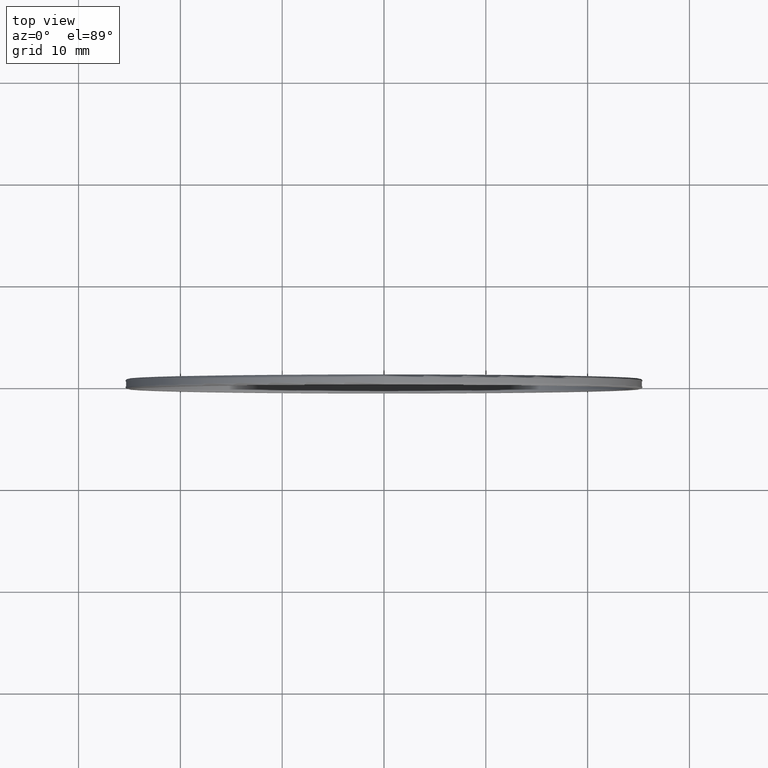
[diagram: clean part render]
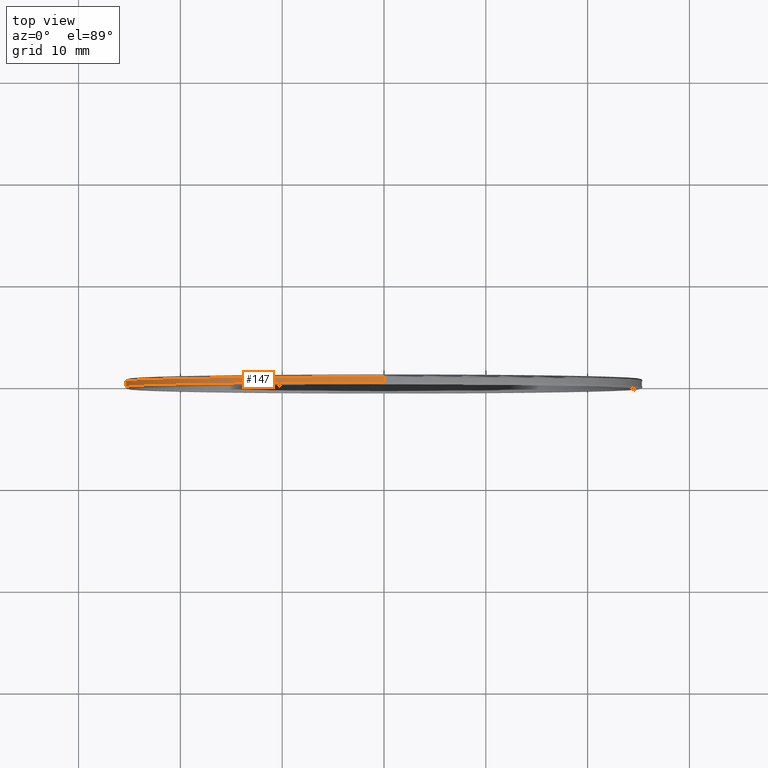
[diagram: same view with one face highlighted and labeled with its STEP entity id]
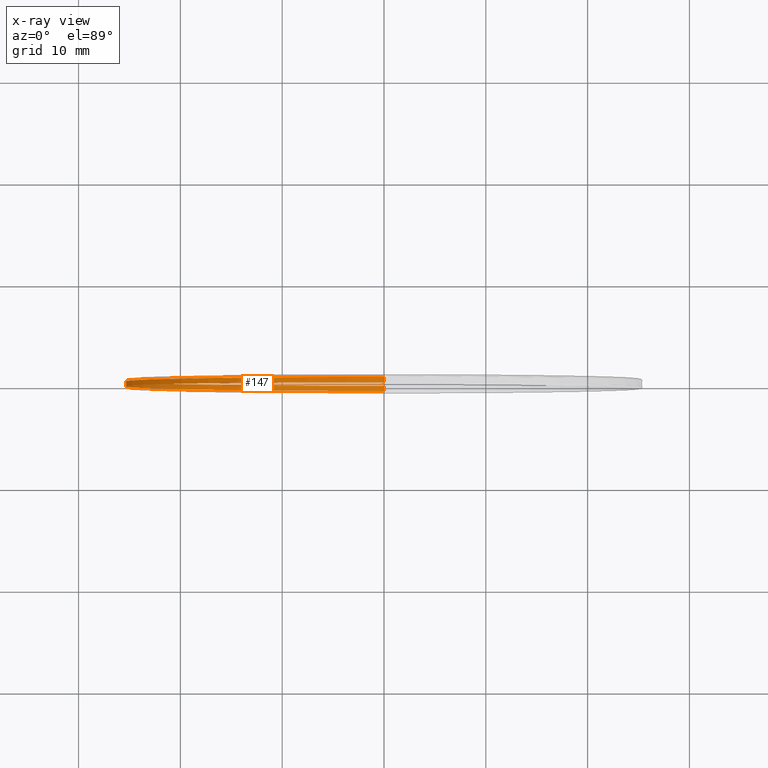
[diagram: x-ray of the same camera — body ghosted, the highlighted face saturated]
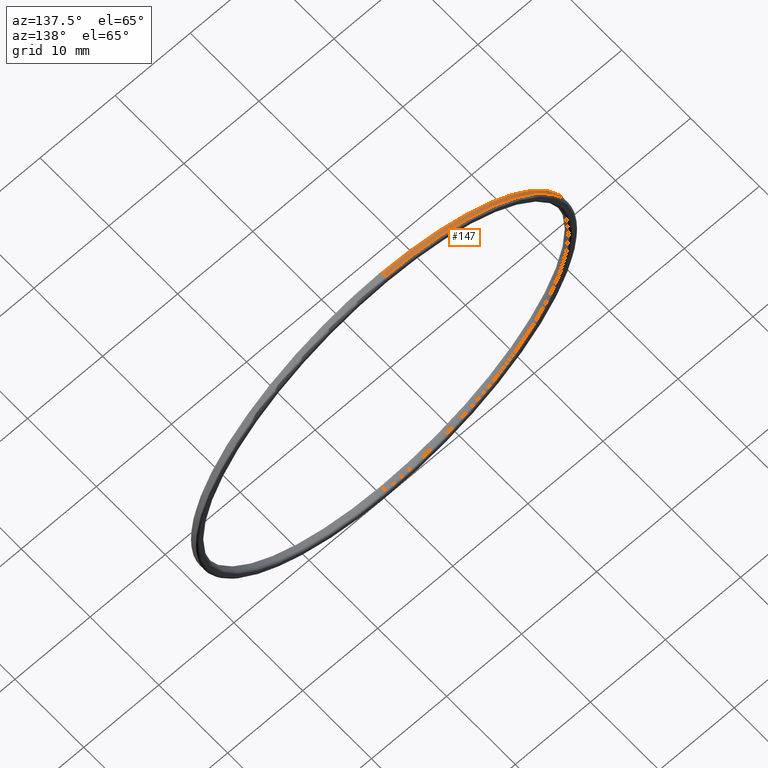
[diagram: same view with one face highlighted and labeled with its STEP entity id]
A machine part, top view. The second image highlights one B-rep face of the part: STEP entity #147.
The next image is the same camera in x-ray: the body ghosted, the highlighted face saturated — about 8% of this face is hidden behind the body in this view.
A second angle (auxiliary view) of the same face is appended — the face is thin or edge-on in the first view.
In plain terms, the highlighted cylindrical surface (partial cylindrical patch) has radius 25.4 mm, axis along (-0, 1, -0).
Its self-contained STEP definition (entity closure, byte-faithful):
#8 = EDGE_CURVE ( 'NONE', #77, #326, #95, .T. ) ;
#9 = CARTESIAN_POINT ( 'NONE',  ( 0.0000000000000000000, 4.847222222222231203, 0.0000000000000000000 ) ) ;
#16 = EDGE_CURVE ( 'NONE', #77, #60, #114, .T. ) ;
#60 = VERTEX_POINT ( 'NONE', #215 ) ;
#64 = CARTESIAN_POINT ( 'NONE',  ( 3.110602869834276865E-15, 4.847222222222231203, -25.39999999999999858 ) ) ;
#77 = VERTEX_POINT ( 'NONE', #325 ) ;
#78 = VERTEX_POINT ( 'NONE', #256 ) ;
#95 = LINE ( 'NONE', #64, #257 ) ;
#114 = CIRCLE ( 'NONE', #279, 25.39999999999999858 ) ;
#116 = DIRECTION ( 'NONE',  ( 0.0000000000000000000, 0.0000000000000000000, -1.000000000000000000 ) ) ;
#133 = AXIS2_PLACEMENT_3D ( 'NONE', #409, #193, #116 ) ;
#139 = ORIENTED_EDGE ( 'NONE', *, *, #143, .T. ) ;
#143 = EDGE_CURVE ( 'NONE', #78, #326, #299, .T. ) ;
#147 = ADVANCED_FACE ( 'NONE', ( #174 ), #375, .T. ) ;
#150 = VECTOR ( 'NONE', #260, 1000.000000000000000 ) ;
#171 = EDGE_CURVE ( 'NONE', #60, #78, #364, .T. ) ;
#174 = FACE_OUTER_BOUND ( 'NONE', #246, .T. ) ;
#193 = DIRECTION ( 'NONE',  ( 0.0000000000000000000, -1.000000000000000000, 0.0000000000000000000 ) ) ;
#201 = ORIENTED_EDGE ( 'NONE', *, *, #8, .F. ) ;
#215 = CARTESIAN_POINT ( 'NONE',  ( 0.0000000000000000000, -0.2500000000000019429, 25.39999999999999858 ) ) ;
#241 = DIRECTION ( 'NONE',  ( -0.0000000000000000000, 1.000000000000000000, -0.0000000000000000000 ) ) ;
#243 = ORIENTED_EDGE ( 'NONE', *, *, #171, .T. ) ;
#246 = EDGE_LOOP ( 'NONE', ( #201, #285, #243, #139 ) ) ;
#256 = CARTESIAN_POINT ( 'NONE',  ( 0.0000000000000000000, 0.2499999999999976130, 25.39999999999999858 ) ) ;
#257 = VECTOR ( 'NONE', #294, 1000.000000000000000 ) ;
#260 = DIRECTION ( 'NONE',  ( -0.0000000000000000000, 1.000000000000000000, -0.0000000000000000000 ) ) ;
#262 = CARTESIAN_POINT ( 'NONE',  ( 0.0000000000000000000, 4.847222222222231203, 25.39999999999999858 ) ) ;
#275 = CARTESIAN_POINT ( 'NONE',  ( 3.110602869834276865E-15, 0.2499999999999976130, -25.39999999999999858 ) ) ;
#279 = AXIS2_PLACEMENT_3D ( 'NONE', #327, #241, #368 ) ;
#285 = ORIENTED_EDGE ( 'NONE', *, *, #16, .T. ) ;
#294 = DIRECTION ( 'NONE',  ( -0.0000000000000000000, 1.000000000000000000, -0.0000000000000000000 ) ) ;
#299 = CIRCLE ( 'NONE', #133, 25.39999999999999858 ) ;
#304 = DIRECTION ( 'NONE',  ( 0.0000000000000000000, 0.0000000000000000000, 1.000000000000000000 ) ) ;
#325 = CARTESIAN_POINT ( 'NONE',  ( 3.110602869834276865E-15, -0.2500000000000019429, -25.39999999999999858 ) ) ;
#326 = VERTEX_POINT ( 'NONE', #275 ) ;
#327 = CARTESIAN_POINT ( 'NONE',  ( 0.0000000000000000000, -0.2500000000000019429, 0.0000000000000000000 ) ) ;
#349 = DIRECTION ( 'NONE',  ( -0.0000000000000000000, 1.000000000000000000, -0.0000000000000000000 ) ) ;
#364 = LINE ( 'NONE', #262, #150 ) ;
#368 = DIRECTION ( 'NONE',  ( 0.0000000000000000000, 0.0000000000000000000, 1.000000000000000000 ) ) ;
#375 = CYLINDRICAL_SURFACE ( 'NONE', #427, 25.39999999999999858 ) ;
#409 = CARTESIAN_POINT ( 'NONE',  ( 0.0000000000000000000, 0.2499999999999976130, 0.0000000000000000000 ) ) ;
#427 = AXIS2_PLACEMENT_3D ( 'NONE', #9, #349, #304 ) ;